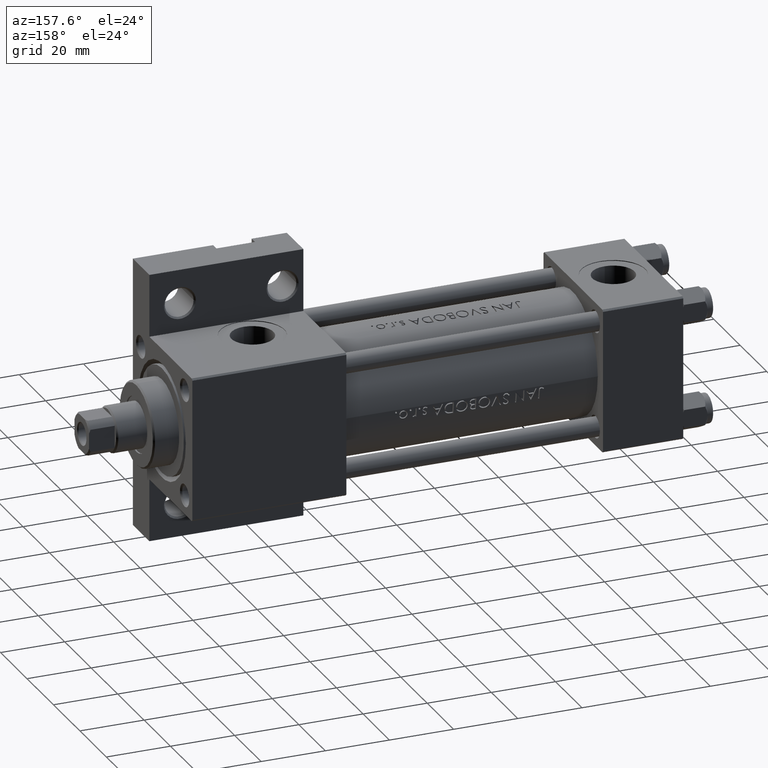
[diagram: clean part render]
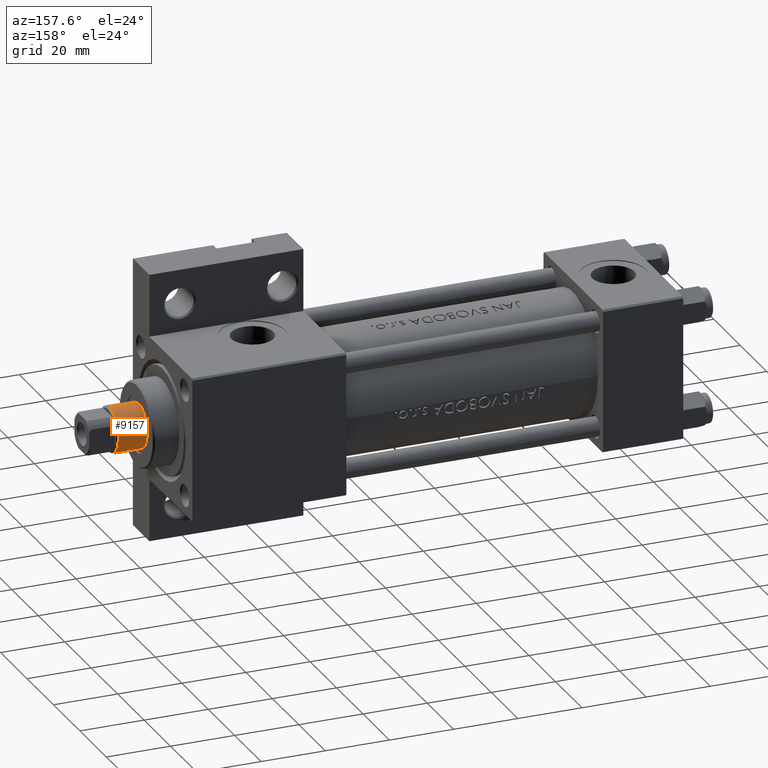
[diagram: same view with one face highlighted and labeled with its STEP entity id]
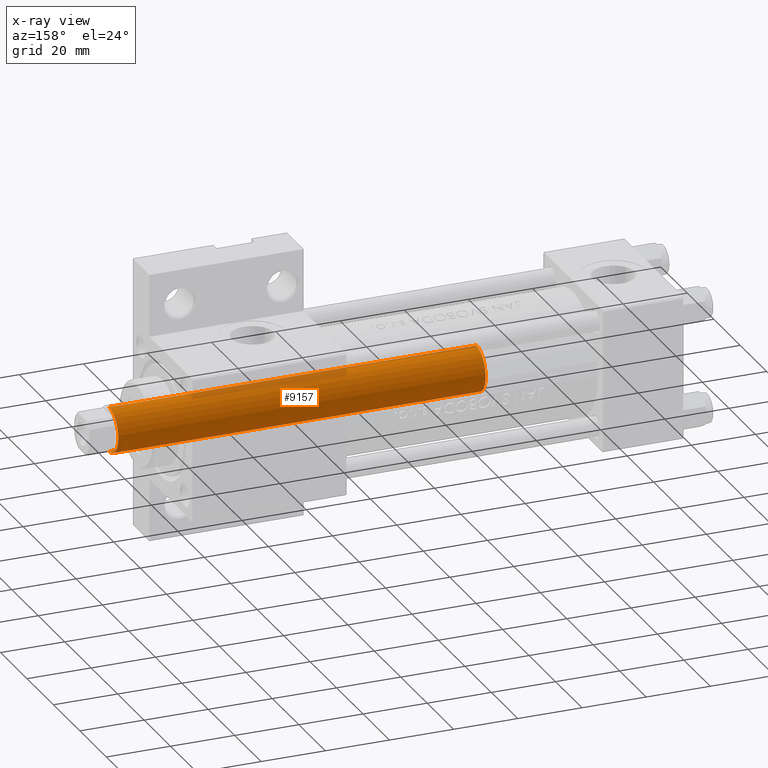
[diagram: x-ray of the same camera — body ghosted, the highlighted face saturated]
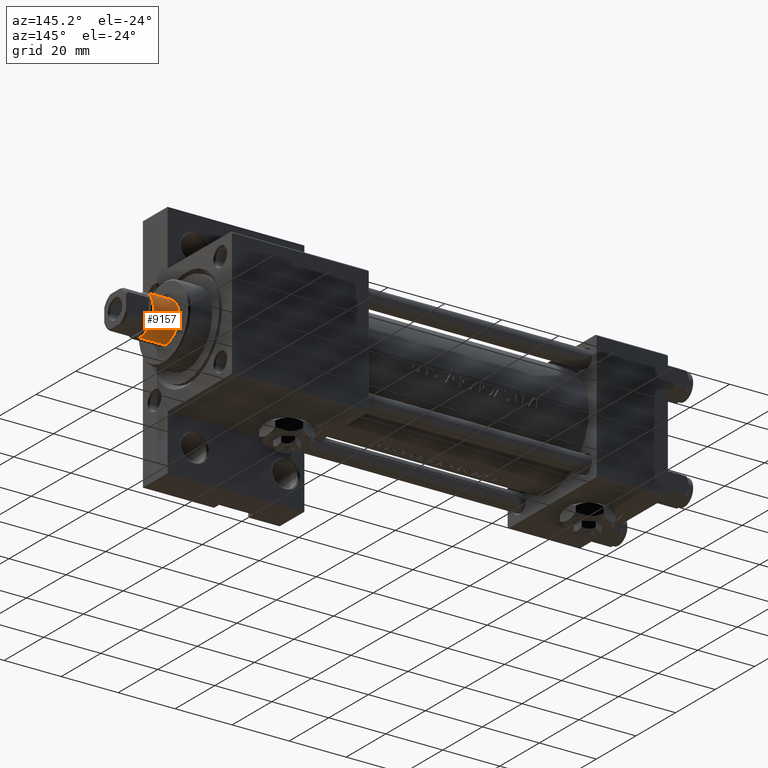
[diagram: same view with one face highlighted and labeled with its STEP entity id]
A machine part, auxiliary view. The second image highlights one B-rep face of the part: STEP entity #9157.
The next image is the same camera in x-ray: the body ghosted, the highlighted face saturated — about 8% of this face is hidden behind the body in this view.
A second angle (auxiliary view) of the same face is appended — the face is thin or edge-on in the first view.
In plain terms, the highlighted cylindrical surface (edge-blend (fillet) strip) has radius 7 mm, axis along (-1, 0, 0).
Its self-contained STEP definition (entity closure, byte-faithful):
#944 = DIRECTION ( 'NONE',  ( -0.000000000000000000, -0.000000000000000000, -1.000000000000000000 ) ) ;
#2639 = EDGE_CURVE ( 'NONE', #48336, #6469, #13221, .T. ) ;
#3354 = CIRCLE ( 'NONE', #9792, 7.000000000000000000 ) ;
#3662 = CARTESIAN_POINT ( 'NONE',  ( 7.000000000000000000, 8.572527594031473190E-16, 145.0000000000000284 ) ) ;
#5133 = CARTESIAN_POINT ( 'NONE',  ( -7.000000000000000000, 0.000000000000000000, 144.4999999999999716 ) ) ;
#6469 = VERTEX_POINT ( 'NONE', #33013 ) ;
#9157 = ADVANCED_FACE ( 'NONE', ( #40891 ), #17985, .T. ) ;
#9792 = AXIS2_PLACEMENT_3D ( 'NONE', #16459, #44372, #24479 ) ;
#10217 = AXIS2_PLACEMENT_3D ( 'NONE', #33330, #34573, #45415 ) ;
#10786 = AXIS2_PLACEMENT_3D ( 'NONE', #39130, #30799, #16222 ) ;
#11087 = EDGE_CURVE ( 'NONE', #31618, #48336, #16509, .T. ) ;
#11934 = ORIENTED_EDGE ( 'NONE', *, *, #17048, .T. ) ;
#13221 = CIRCLE ( 'NONE', #10786, 7.000000000000000000 ) ;
#14977 = LINE ( 'NONE', #3662, #46703 ) ;
#16222 = DIRECTION ( 'NONE',  ( 1.000000000000000000, 0.000000000000000000, 0.000000000000000000 ) ) ;
#16459 = CARTESIAN_POINT ( 'NONE',  ( 0.000000000000000000, 0.000000000000000000, 144.4999999999999716 ) ) ;
#16509 = LINE ( 'NONE', #35384, #21389 ) ;
#17048 = EDGE_CURVE ( 'NONE', #41381, #31618, #3354, .T. ) ;
#17985 = CYLINDRICAL_SURFACE ( 'NONE', #10217, 7.000000000000000000 ) ;
#21389 = VECTOR ( 'NONE', #944, 1000.000000000000000 ) ;
#23161 = ORIENTED_EDGE ( 'NONE', *, *, #2639, .T. ) ;
#24479 = DIRECTION ( 'NONE',  ( 1.000000000000000000, 0.000000000000000000, 0.000000000000000000 ) ) ;
#26269 = DIRECTION ( 'NONE',  ( -0.000000000000000000, -0.000000000000000000, -1.000000000000000000 ) ) ;
#29708 = CARTESIAN_POINT ( 'NONE',  ( 7.000000000000000000, 8.572527594031473190E-16, 144.4999999999999716 ) ) ;
#30799 = DIRECTION ( 'NONE',  ( 0.000000000000000000, 0.000000000000000000, 1.000000000000000000 ) ) ;
#31618 = VERTEX_POINT ( 'NONE', #5133 ) ;
#33013 = CARTESIAN_POINT ( 'NONE',  ( 7.000000000000000000, 8.572527594031473190E-16, 30.00000000000000000 ) ) ;
#33330 = CARTESIAN_POINT ( 'NONE',  ( 0.000000000000000000, 0.000000000000000000, 145.0000000000000284 ) ) ;
#34573 = DIRECTION ( 'NONE',  ( -0.000000000000000000, -0.000000000000000000, -1.000000000000000000 ) ) ;
#35294 = EDGE_CURVE ( 'NONE', #41381, #6469, #14977, .T. ) ;
#35384 = CARTESIAN_POINT ( 'NONE',  ( -7.000000000000000000, 0.000000000000000000, 145.0000000000000284 ) ) ;
#39130 = CARTESIAN_POINT ( 'NONE',  ( 0.000000000000000000, 0.000000000000000000, 30.00000000000000000 ) ) ;
#40745 = ORIENTED_EDGE ( 'NONE', *, *, #11087, .T. ) ;
#40891 = FACE_OUTER_BOUND ( 'NONE', #49588, .T. ) ;
#41381 = VERTEX_POINT ( 'NONE', #29708 ) ;
#42725 = ORIENTED_EDGE ( 'NONE', *, *, #35294, .F. ) ;
#44372 = DIRECTION ( 'NONE',  ( 0.000000000000000000, 0.000000000000000000, -1.000000000000000000 ) ) ;
#44650 = CARTESIAN_POINT ( 'NONE',  ( -7.000000000000000000, 0.000000000000000000, 30.00000000000000000 ) ) ;
#45415 = DIRECTION ( 'NONE',  ( -1.000000000000000000, 0.000000000000000000, 0.000000000000000000 ) ) ;
#46703 = VECTOR ( 'NONE', #26269, 1000.000000000000000 ) ;
#48336 = VERTEX_POINT ( 'NONE', #44650 ) ;
#49588 = EDGE_LOOP ( 'NONE', ( #42725, #11934, #40745, #23161 ) ) ;